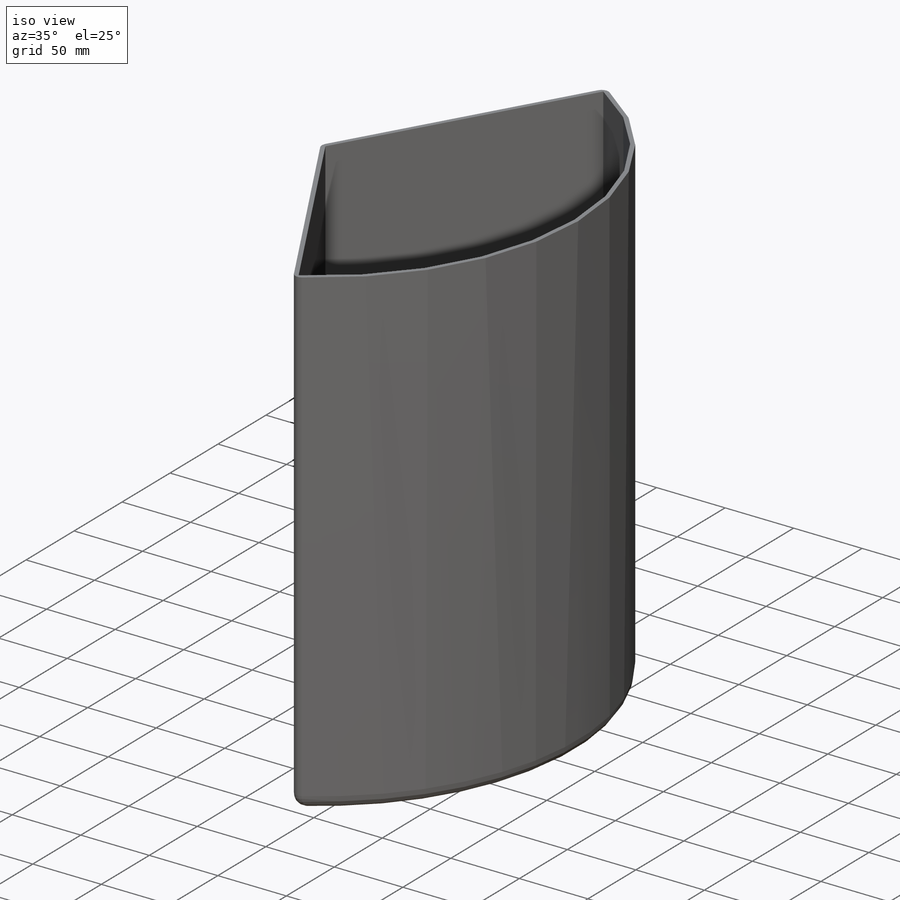
[diagram: iso view]
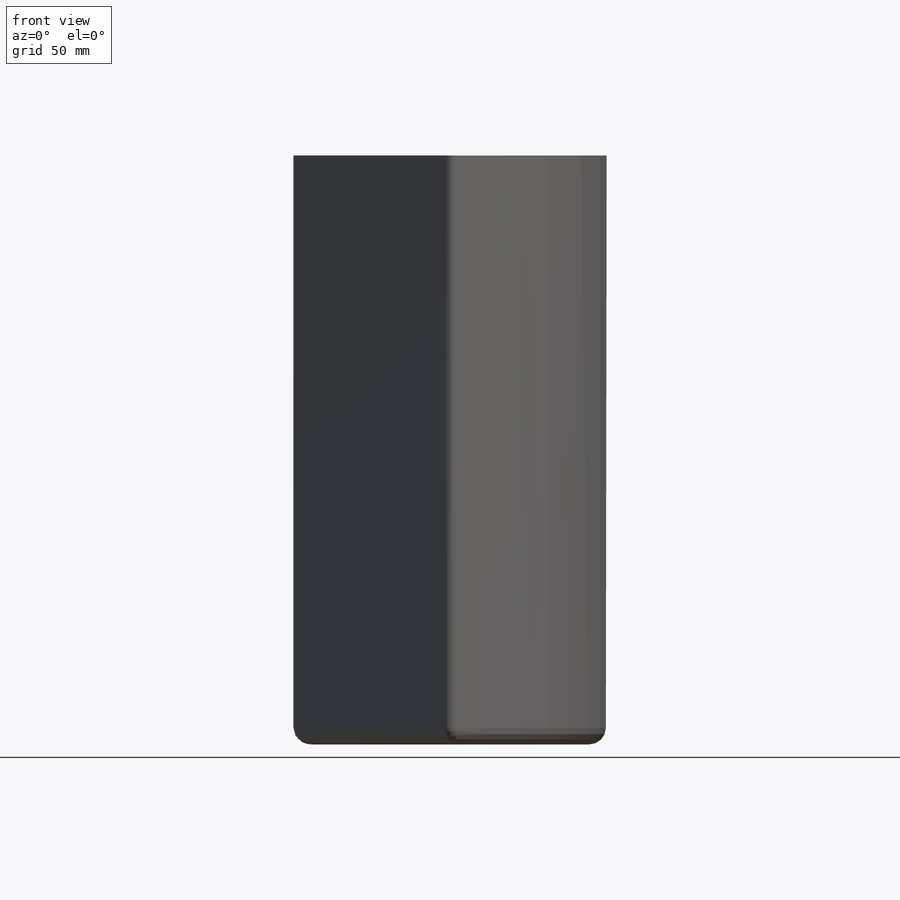
[diagram: front view]
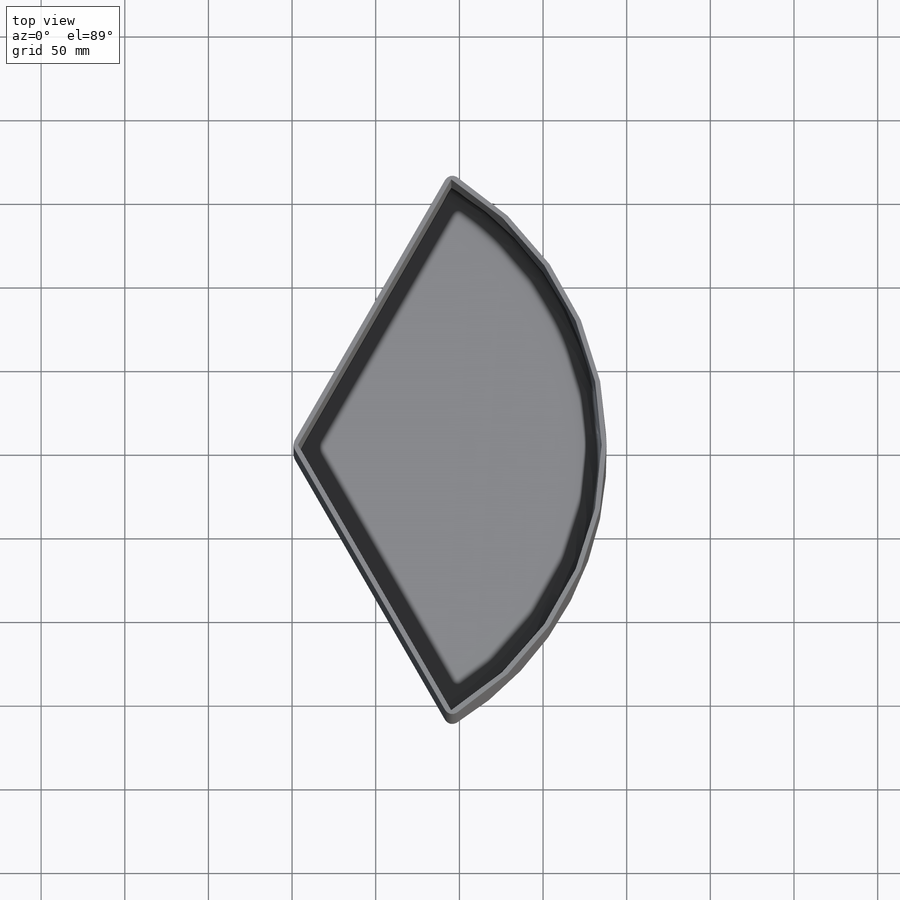
[diagram: top view]
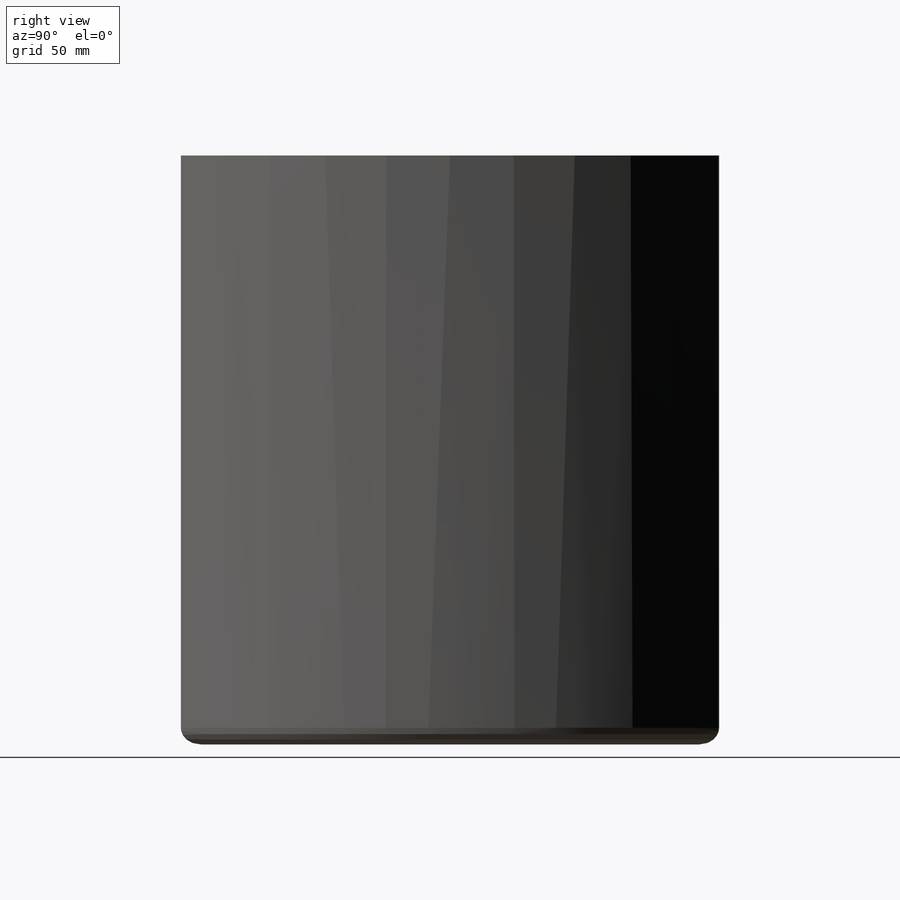
[diagram: right view]
SOLIDWORKS PART (.sldprt)
format: sldprt  version: not decoded by parser v0  size: 157,184 bytes
history: native  units: mm
features: fillet x5, plane x3, material x1, sketch x1, extrude x1, shell x1 (+13 scaffold rows collapsed)
feature tree (25):
  scaffold x13  (default folders/planes/origin — collapsed)
  material  "Material <não especificado>"
  plane  "Plano frontal"
  plane  "Plano superior"
  plane  "Plano direito"
  sketch  "Esboço1"  dims[c1.D1=~94.036778mm c2.D1=120.0deg c2.D2=~325.625544mm]
  extrude  "Extrusão3"  Depth=352mm
  shell  "Casca1"  Thickness=3mm
  fillet  "Filete3"  Radius=5mm
  fillet  "Filete4"  Radius=5mm
  fillet  "Filete5"  Radius=5mm
  fillet  "Filete6"  Radius=10mm
  fillet  "Filete7"  Radius=10mm
decode coverage: 8 of 8 modeling features carry decoded parameters
note: ~ marks probable driven/reference dimensions
note: suppression state not decoded; provenance and decode notes live in map.json
